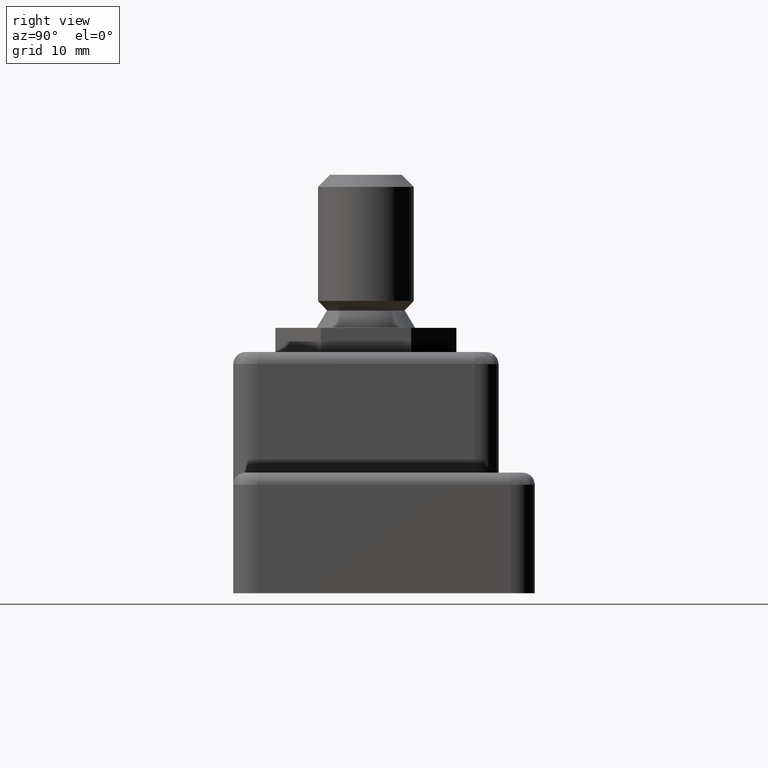
[diagram: clean part render]
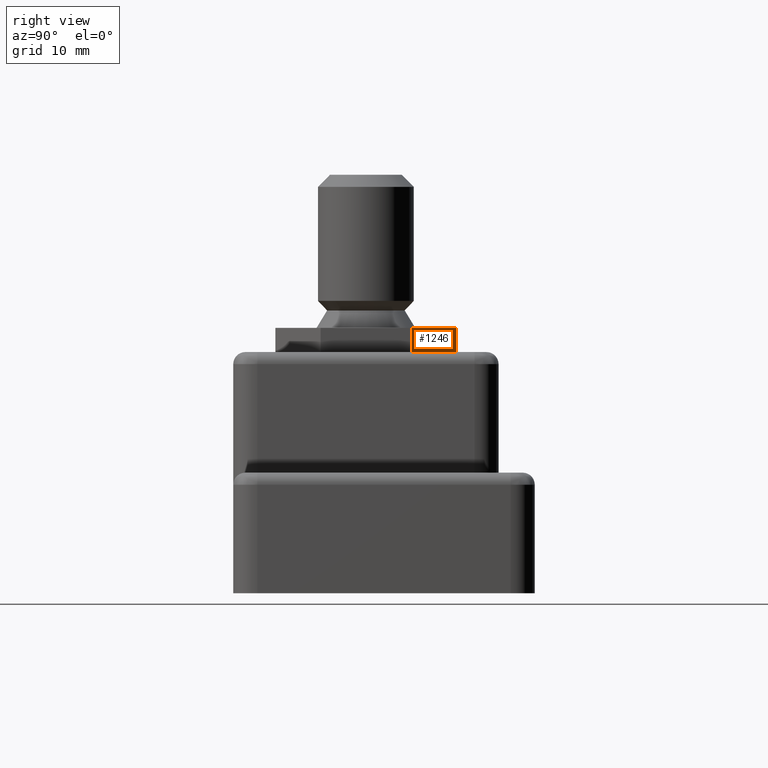
[diagram: same view with one face highlighted and labeled with its STEP entity id]
A machine part, right view. The second image highlights one B-rep face of the part: STEP entity #1246.
In plain terms, the highlighted planar face has unit normal (0.5, 0.866, 0).
Its self-contained STEP definition (entity closure, byte-faithful):
#50=PLANE('',#1400);
#138=LINE('',#2056,#235);
#178=LINE('',#2286,#275);
#184=LINE('',#2296,#281);
#188=LINE('',#2304,#285);
#235=VECTOR('',#1573,1.);
#275=VECTOR('',#1737,0.999999999999999);
#281=VECTOR('',#1745,1.);
#285=VECTOR('',#1757,1.);
#356=FACE_OUTER_BOUND('',#430,.T.);
#430=EDGE_LOOP('',(#1142,#1143,#1144,#1145));
#580=VERTEX_POINT('',#2053);
#581=VERTEX_POINT('',#2055);
#611=VERTEX_POINT('',#2282);
#613=VERTEX_POINT('',#2285);
#714=EDGE_CURVE('',#581,#580,#138,.T.);
#785=EDGE_CURVE('',#613,#611,#178,.T.);
#791=EDGE_CURVE('',#581,#611,#184,.T.);
#795=EDGE_CURVE('',#580,#613,#188,.T.);
#1142=ORIENTED_EDGE('',*,*,#785,.T.);
#1143=ORIENTED_EDGE('',*,*,#791,.F.);
#1144=ORIENTED_EDGE('',*,*,#714,.T.);
#1145=ORIENTED_EDGE('',*,*,#795,.T.);
#1246=ADVANCED_FACE('',(#356),#50,.T.);
#1400=AXIS2_PLACEMENT_3D('',#2305,#1758,#1759);
#1573=DIRECTION('',(-0.866025403784439,0.5,0.));
#1737=DIRECTION('',(0.866025403784439,-0.5,0.));
#1745=DIRECTION('',(0.,0.,1.));
#1757=DIRECTION('',(0.,0.,1.));
#1758=DIRECTION('center_axis',(0.5,0.866025403784439,0.));
#1759=DIRECTION('ref_axis',(-0.866025403784439,0.5,0.));
#2053=CARTESIAN_POINT('',(0.,18.5055534994651,20.));
#2055=CARTESIAN_POINT('',(6.5,14.7527767497326,20.));
#2056=CARTESIAN_POINT('',(6.5,14.7527767497326,20.));
#2282=CARTESIAN_POINT('',(6.5,14.7527767497326,22.));
#2285=CARTESIAN_POINT('',(0.,18.5055534994651,22.));
#2286=CARTESIAN_POINT('',(6.5,14.7527767497326,22.));
#2296=CARTESIAN_POINT('',(6.5,14.7527767497326,20.));
#2304=CARTESIAN_POINT('',(0.,18.5055534994651,20.));
#2305=CARTESIAN_POINT('Origin',(0.,18.5055534994651,20.));